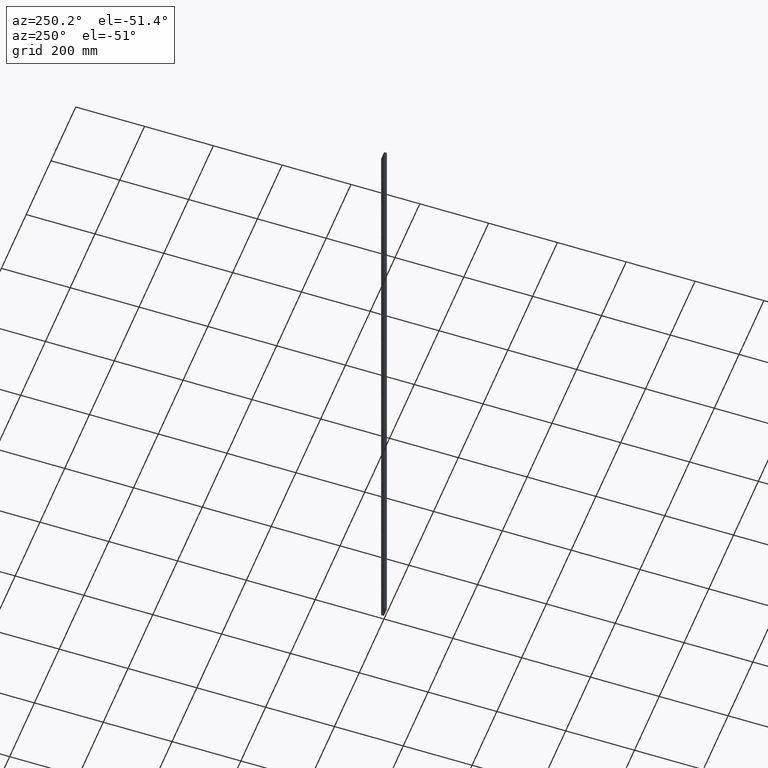
[diagram: clean part render]
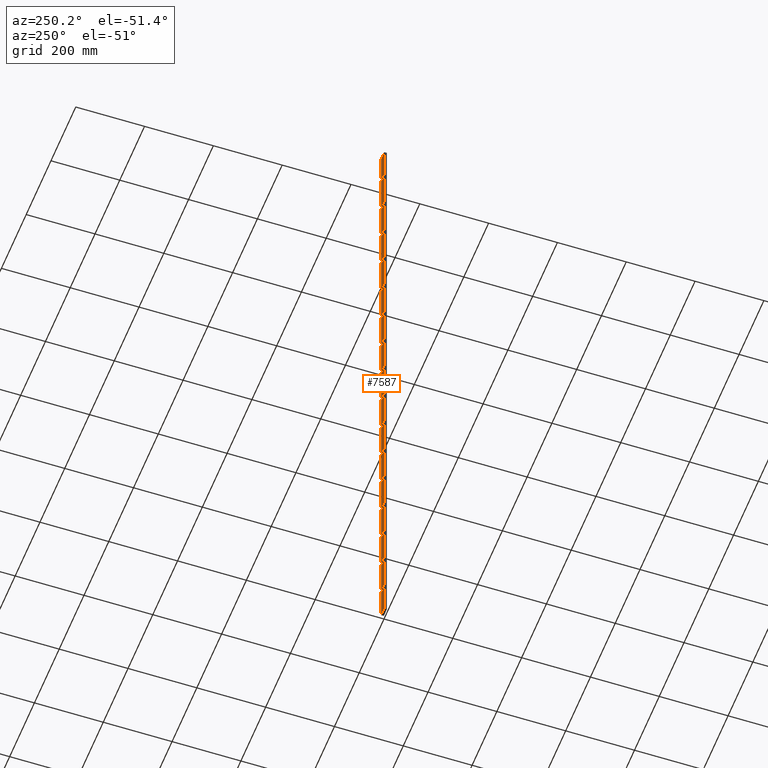
[diagram: same view with one face highlighted and labeled with its STEP entity id]
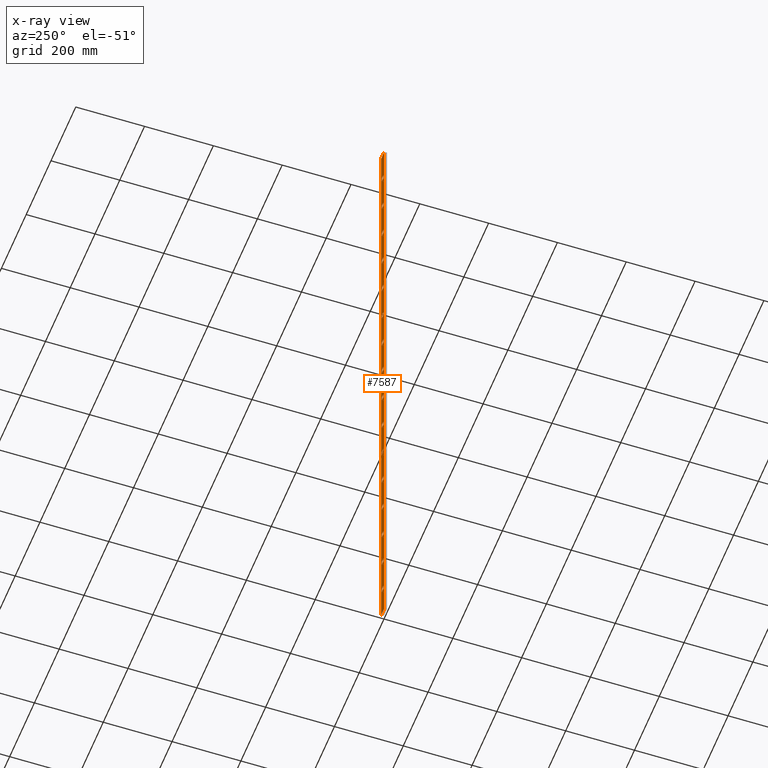
[diagram: x-ray of the same camera — body ghosted, the highlighted face saturated]
A machine part, auxiliary view. The second image highlights one B-rep face of the part: STEP entity #7587.
The next image is the same camera in x-ray: the body ghosted, the highlighted face saturated — about 0% of this face is hidden behind the body in this view.
In plain terms, the highlighted planar face has unit normal (0, 1, 0).
Its self-contained STEP definition (entity closure, byte-faithful):
#15 = VECTOR ( 'NONE', #5927, 1000.000000000000000 ) ;
#29 = ORIENTED_EDGE ( 'NONE', *, *, #4945, .F. ) ;
#46 = VERTEX_POINT ( 'NONE', #12232 ) ;
#56 = DIRECTION ( 'NONE',  ( 1.000000000000000000, 0.000000000000000000, 0.000000000000000000 ) ) ;
#63 = VECTOR ( 'NONE', #10597, 1000.000000000000000 ) ;
#116 = LINE ( 'NONE', #2184, #11740 ) ;
#154 = VECTOR ( 'NONE', #13723, 1000.000000000000000 ) ;
#200 = VERTEX_POINT ( 'NONE', #9331 ) ;
#227 = VECTOR ( 'NONE', #10731, 1000.000000000000000 ) ;
#240 = EDGE_LOOP ( 'NONE', ( #8394, #1902, #10071, #4547 ) ) ;
#258 = ORIENTED_EDGE ( 'NONE', *, *, #11860, .F. ) ;
#321 = CARTESIAN_POINT ( 'NONE',  ( 6.500000000000103029, 4.000000000000000000, -66.50000000000000000 ) ) ;
#325 = LINE ( 'NONE', #7321, #8709 ) ;
#327 = EDGE_CURVE ( 'NONE', #10203, #662, #7542, .T. ) ;
#329 = LINE ( 'NONE', #360, #9256 ) ;
#345 = CARTESIAN_POINT ( 'NONE',  ( -6.499999999999926281, 4.000000000000000000, -306.5000000000000000 ) ) ;
#349 = CARTESIAN_POINT ( 'NONE',  ( -6.499999999999836575, 4.000000000000000000, 426.4999999999998863 ) ) ;
#360 = CARTESIAN_POINT ( 'NONE',  ( -6.499999999999823252, 4.000000000000000000, 533.5000000000000000 ) ) ;
#467 = CARTESIAN_POINT ( 'NONE',  ( -6.499999999999880096, 4.000000000000000000, 66.50000000000000000 ) ) ;
#478 = EDGE_CURVE ( 'NONE', #1856, #7910, #14488, .T. ) ;
#530 = CARTESIAN_POINT ( 'NONE',  ( -6.499999999999881872, 4.000000000000000000, 53.49999999999999289 ) ) ;
#542 = VERTEX_POINT ( 'NONE', #9730 ) ;
#546 = CARTESIAN_POINT ( 'NONE',  ( -6.499999999999984901, 4.000000000000000000, -786.5000000000000000 ) ) ;
#648 = VERTEX_POINT ( 'NONE', #5390 ) ;
#656 = CARTESIAN_POINT ( 'NONE',  ( -6.499999999999821476, 4.000000000000000000, 546.5000000000000000 ) ) ;
#662 = VERTEX_POINT ( 'NONE', #10011 ) ;
#684 = CARTESIAN_POINT ( 'NONE',  ( 6.500000000000175859, 4.000000000000000000, 546.5000000000000000 ) ) ;
#690 = CARTESIAN_POINT ( 'NONE',  ( 6.500000000000014211, 4.000000000000000000, -786.5000000000000000 ) ) ;
#694 = CARTESIAN_POINT ( 'NONE',  ( 6.500000000000190958, 4.000000000000000000, 666.5000000000001137 ) ) ;
#711 = LINE ( 'NONE', #12636, #14100 ) ;
#719 = VERTEX_POINT ( 'NONE', #2321 ) ;
#835 = EDGE_CURVE ( 'NONE', #8054, #200, #12360, .T. ) ;
#854 = VERTEX_POINT ( 'NONE', #1188 ) ;
#865 = EDGE_LOOP ( 'NONE', ( #3510, #6103, #29, #8428 ) ) ;
#918 = VERTEX_POINT ( 'NONE', #9549 ) ;
#924 = CARTESIAN_POINT ( 'NONE',  ( -6.499999999999865885, 4.000000000000000000, 186.5000000000001137 ) ) ;
#926 = ORIENTED_EDGE ( 'NONE', *, *, #1789, .F. ) ;
#948 = EDGE_LOOP ( 'NONE', ( #13165, #2267, #4478, #8540 ) ) ;
#967 = FACE_BOUND ( 'NONE', #8071, .T. ) ;
#977 = EDGE_CURVE ( 'NONE', #9874, #1856, #3223, .T. ) ;
#994 = ORIENTED_EDGE ( 'NONE', *, *, #11745, .F. ) ;
#1040 = LINE ( 'NONE', #14633, #2985 ) ;
#1082 = LINE ( 'NONE', #2525, #15 ) ;
#1131 = DIRECTION ( 'NONE',  ( 1.334402673828312107E-16, 0.000000000000000000, 1.000000000000000000 ) ) ;
#1139 = DIRECTION ( 'NONE',  ( -0.000000000000000000, -0.000000000000000000, -1.000000000000000000 ) ) ;
#1162 = CARTESIAN_POINT ( 'NONE',  ( 6.500000000000000000, 4.000000000000000000, -893.5000000000000000 ) ) ;
#1188 = CARTESIAN_POINT ( 'NONE',  ( -6.499999999999998224, 4.000000000000000000, -893.5000000000000000 ) ) ;
#1237 = VECTOR ( 'NONE', #3477, 1000.000000000000000 ) ;
#1248 = VERTEX_POINT ( 'NONE', #4018 ) ;
#1261 = EDGE_LOOP ( 'NONE', ( #3863, #5552, #3787, #6462 ) ) ;
#1308 = CARTESIAN_POINT ( 'NONE',  ( -6.499999999999809042, 4.000000000000000000, 653.5000000000001137 ) ) ;
#1365 = EDGE_CURVE ( 'NONE', #13858, #14280, #12701, .T. ) ;
#1385 = VERTEX_POINT ( 'NONE', #7189 ) ;
#1394 = CARTESIAN_POINT ( 'NONE',  ( -6.500000000000000000, 4.000000000000000000, -906.5000000000000000 ) ) ;
#1418 = CARTESIAN_POINT ( 'NONE',  ( 6.500000000000014211, 4.000000000000000000, -773.5000000000000000 ) ) ;
#1588 = DIRECTION ( 'NONE',  ( 1.334402673828312107E-16, 0.000000000000000000, 1.000000000000000000 ) ) ;
#1589 = LINE ( 'NONE', #546, #3332 ) ;
#1594 = CARTESIAN_POINT ( 'NONE',  ( 6.500000000000146549, 4.000000000000000000, 306.5000000000000000 ) ) ;
#1682 = LINE ( 'NONE', #9907, #12755 ) ;
#1736 = CARTESIAN_POINT ( 'NONE',  ( -6.499999999999881872, 4.000000000000000000, 53.49999999999999289 ) ) ;
#1753 = EDGE_CURVE ( 'NONE', #12922, #9095, #3023, .T. ) ;
#1781 = VECTOR ( 'NONE', #6419, 1000.000000000000000 ) ;
#1783 = CARTESIAN_POINT ( 'NONE',  ( -6.499999999999779732, 4.000000000000000000, 893.4999999999998863 ) ) ;
#1789 = EDGE_CURVE ( 'NONE', #6401, #1868, #6266, .T. ) ;
#1798 = DIRECTION ( 'NONE',  ( 0.000000000000000000, 1.000000000000000000, 0.000000000000000000 ) ) ;
#1801 = CARTESIAN_POINT ( 'NONE',  ( -6.499999999999793943, 4.000000000000000000, 773.5000000000000000 ) ) ;
#1804 = VERTEX_POINT ( 'NONE', #13809 ) ;
#1856 = VERTEX_POINT ( 'NONE', #6958 ) ;
#1868 = VERTEX_POINT ( 'NONE', #12944 ) ;
#1900 = LINE ( 'NONE', #4274, #3294 ) ;
#1902 = ORIENTED_EDGE ( 'NONE', *, *, #9916, .F. ) ;
#1915 = EDGE_LOOP ( 'NONE', ( #7048, #6932, #926, #14189 ) ) ;
#1953 = VERTEX_POINT ( 'NONE', #14343 ) ;
#1967 = VECTOR ( 'NONE', #8599, 1000.000000000000000 ) ;
#1980 = VECTOR ( 'NONE', #2706, 1000.000000000000000 ) ;
#2005 = DIRECTION ( 'NONE',  ( 1.334402673828312107E-16, 0.000000000000000000, 1.000000000000000000 ) ) ;
#2046 = FACE_BOUND ( 'NONE', #11369, .T. ) ;
#2052 = FACE_BOUND ( 'NONE', #3891, .T. ) ;
#2062 = EDGE_CURVE ( 'NONE', #648, #8197, #4817, .T. ) ;
#2097 = VECTOR ( 'NONE', #1131, 1000.000000000000000 ) ;
#2101 = VECTOR ( 'NONE', #2905, 1000.000000000000000 ) ;
#2113 = VECTOR ( 'NONE', #3024, 1000.000000000000000 ) ;
#2130 = CARTESIAN_POINT ( 'NONE',  ( 6.500000000000220268, 4.000000000000000000, 893.4999999999998863 ) ) ;
#2145 = EDGE_CURVE ( 'NONE', #7577, #13359, #4448, .T. ) ;
#2184 = CARTESIAN_POINT ( 'NONE',  ( -6.499999999999984901, 4.000000000000000000, -786.5000000000000000 ) ) ;
#2239 = CARTESIAN_POINT ( 'NONE',  ( -6.499999999999940492, 4.000000000000000000, -426.5000000000000000 ) ) ;
#2260 = LINE ( 'NONE', #14070, #2101 ) ;
#2267 = ORIENTED_EDGE ( 'NONE', *, *, #6339, .F. ) ;
#2300 = VECTOR ( 'NONE', #6670, 1000.000000000000000 ) ;
#2321 = CARTESIAN_POINT ( 'NONE',  ( -12.50000000000000000, 4.000000000000000000, -1000.000000000000000 ) ) ;
#2331 = EDGE_CURVE ( 'NONE', #10834, #8054, #10728, .T. ) ;
#2473 = VERTEX_POINT ( 'NONE', #14362 ) ;
#2475 = DIRECTION ( 'NONE',  ( 1.334402673828312107E-16, 0.000000000000000000, 1.000000000000000000 ) ) ;
#2499 = CARTESIAN_POINT ( 'NONE',  ( 12.50000000000000000, 4.000000000000000000, 1000.000000000000000 ) ) ;
#2525 = CARTESIAN_POINT ( 'NONE',  ( -6.499999999999807265, 4.000000000000000000, 666.5000000000001137 ) ) ;
#2577 = ORIENTED_EDGE ( 'NONE', *, *, #4995, .F. ) ;
#2578 = DIRECTION ( 'NONE',  ( 1.000000000000000000, 0.000000000000000000, 0.000000000000000000 ) ) ;
#2608 = VECTOR ( 'NONE', #8097, 1000.000000000000000 ) ;
#2649 = ORIENTED_EDGE ( 'NONE', *, *, #14720, .T. ) ;
#2706 = DIRECTION ( 'NONE',  ( -1.000000000000000000, -0.000000000000000000, -0.000000000000000000 ) ) ;
#2713 = CARTESIAN_POINT ( 'NONE',  ( -6.499999999999779732, 4.000000000000000000, 893.4999999999998863 ) ) ;
#2886 = VERTEX_POINT ( 'NONE', #13513 ) ;
#2898 = ORIENTED_EDGE ( 'NONE', *, *, #10018, .F. ) ;
#2905 = DIRECTION ( 'NONE',  ( -1.000000000000000000, -0.000000000000000000, -0.000000000000000000 ) ) ;
#2931 = EDGE_CURVE ( 'NONE', #8747, #8968, #3003, .T. ) ;
#2933 = VERTEX_POINT ( 'NONE', #10443 ) ;
#2935 = VERTEX_POINT ( 'NONE', #13794 ) ;
#2985 = VECTOR ( 'NONE', #3279, 1000.000000000000000 ) ;
#3003 = LINE ( 'NONE', #11650, #1237 ) ;
#3023 = LINE ( 'NONE', #7081, #7161 ) ;
#3024 = DIRECTION ( 'NONE',  ( -1.000000000000000000, -0.000000000000000000, -0.000000000000000000 ) ) ;
#3053 = ORIENTED_EDGE ( 'NONE', *, *, #2331, .F. ) ;
#3054 = VECTOR ( 'NONE', #3455, 1000.000000000000000 ) ;
#3093 = EDGE_CURVE ( 'NONE', #8957, #10354, #8922, .T. ) ;
#3128 = ORIENTED_EDGE ( 'NONE', *, *, #12591, .F. ) ;
#3184 = EDGE_CURVE ( 'NONE', #12063, #7754, #4781, .T. ) ;
#3223 = LINE ( 'NONE', #467, #227 ) ;
#3233 = VERTEX_POINT ( 'NONE', #10197 ) ;
#3270 = ORIENTED_EDGE ( 'NONE', *, *, #478, .F. ) ;
#3279 = DIRECTION ( 'NONE',  ( -0.000000000000000000, -0.000000000000000000, -1.000000000000000000 ) ) ;
#3294 = VECTOR ( 'NONE', #10033, 1000.000000000000000 ) ;
#3295 = VERTEX_POINT ( 'NONE', #8783 ) ;
#3331 = CARTESIAN_POINT ( 'NONE',  ( -6.499999999999953815, 4.000000000000000000, -533.5000000000000000 ) ) ;
#3332 = VECTOR ( 'NONE', #9688, 1000.000000000000000 ) ;
#3345 = VERTEX_POINT ( 'NONE', #14548 ) ;
#3350 = LINE ( 'NONE', #13034, #12314 ) ;
#3355 = EDGE_CURVE ( 'NONE', #12559, #648, #3912, .T. ) ;
#3357 = CARTESIAN_POINT ( 'NONE',  ( 6.500000000000205169, 4.000000000000000000, 786.5000000000000000 ) ) ;
#3371 = VECTOR ( 'NONE', #4345, 1000.000000000000000 ) ;
#3442 = EDGE_CURVE ( 'NONE', #10554, #8710, #9267, .T. ) ;
#3455 = DIRECTION ( 'NONE',  ( -0.000000000000000000, -0.000000000000000000, 1.000000000000000000 ) ) ;
#3477 = DIRECTION ( 'NONE',  ( -1.000000000000000000, -0.000000000000000000, -0.000000000000000000 ) ) ;
#3510 = ORIENTED_EDGE ( 'NONE', *, *, #2062, .F. ) ;
#3635 = FACE_BOUND ( 'NONE', #240, .T. ) ;
#3681 = LINE ( 'NONE', #14263, #9421 ) ;
#3724 = DIRECTION ( 'NONE',  ( 1.334402673828312107E-16, 0.000000000000000000, 1.000000000000000000 ) ) ;
#3726 = ORIENTED_EDGE ( 'NONE', *, *, #10627, .F. ) ;
#3728 = EDGE_CURVE ( 'NONE', #4338, #9874, #3900, .T. ) ;
#3732 = LINE ( 'NONE', #11672, #13744 ) ;
#3780 = ORIENTED_EDGE ( 'NONE', *, *, #11587, .F. ) ;
#3787 = ORIENTED_EDGE ( 'NONE', *, *, #3883, .F. ) ;
#3808 = CARTESIAN_POINT ( 'NONE',  ( -6.499999999999969802, 4.000000000000000000, -666.5000000000000000 ) ) ;
#3829 = FACE_BOUND ( 'NONE', #11674, .T. ) ;
#3831 = CARTESIAN_POINT ( 'NONE',  ( -6.499999999999851674, 4.000000000000000000, 306.5000000000000000 ) ) ;
#3847 = LINE ( 'NONE', #321, #14407 ) ;
#3863 = ORIENTED_EDGE ( 'NONE', *, *, #14758, .F. ) ;
#3873 = DIRECTION ( 'NONE',  ( -0.000000000000000000, -0.000000000000000000, -1.000000000000000000 ) ) ;
#3883 = EDGE_CURVE ( 'NONE', #854, #13858, #711, .T. ) ;
#3888 = VECTOR ( 'NONE', #10816, 1000.000000000000000 ) ;
#3891 = EDGE_LOOP ( 'NONE', ( #3726, #14306, #11449, #3780 ) ) ;
#3894 = VERTEX_POINT ( 'NONE', #5659 ) ;
#3900 = LINE ( 'NONE', #8906, #12299 ) ;
#3912 = LINE ( 'NONE', #11498, #9659 ) ;
#3922 = LINE ( 'NONE', #6981, #8583 ) ;
#3946 = VECTOR ( 'NONE', #7524, 1000.000000000000000 ) ;
#3967 = LINE ( 'NONE', #10236, #9884 ) ;
#3987 = DIRECTION ( 'NONE',  ( -0.000000000000000000, -0.000000000000000000, -1.000000000000000000 ) ) ;
#4007 = FACE_BOUND ( 'NONE', #865, .T. ) ;
#4018 = CARTESIAN_POINT ( 'NONE',  ( -6.499999999999940492, 4.000000000000000000, -426.5000000000000000 ) ) ;
#4068 = CARTESIAN_POINT ( 'NONE',  ( 6.500000000000117240, 4.000000000000000000, 53.49999999999999289 ) ) ;
#4076 = LINE ( 'NONE', #12410, #9810 ) ;
#4080 = CARTESIAN_POINT ( 'NONE',  ( -6.499999999999896083, 4.000000000000000000, -66.50000000000000000 ) ) ;
#4104 = VERTEX_POINT ( 'NONE', #11090 ) ;
#4146 = EDGE_LOOP ( 'NONE', ( #5321, #11337, #8578, #9337 ) ) ;
#4172 = ORIENTED_EDGE ( 'NONE', *, *, #6487, .F. ) ;
#4251 = VECTOR ( 'NONE', #9474, 1000.000000000000000 ) ;
#4268 = EDGE_CURVE ( 'NONE', #12907, #2933, #2260, .T. ) ;
#4274 = CARTESIAN_POINT ( 'NONE',  ( -6.499999999999838352, 4.000000000000000000, 413.4999999999998863 ) ) ;
#4297 = EDGE_CURVE ( 'NONE', #13407, #10203, #12124, .T. ) ;
#4328 = VERTEX_POINT ( 'NONE', #10764 ) ;
#4338 = VERTEX_POINT ( 'NONE', #1736 ) ;
#4345 = DIRECTION ( 'NONE',  ( -0.000000000000000000, -0.000000000000000000, -1.000000000000000000 ) ) ;
#4448 = LINE ( 'NONE', #5622, #3371 ) ;
#4451 = EDGE_CURVE ( 'NONE', #9413, #8136, #4076, .T. ) ;
#4478 = ORIENTED_EDGE ( 'NONE', *, *, #7147, .F. ) ;
#4481 = VECTOR ( 'NONE', #8497, 1000.000000000000000 ) ;
#4544 = CARTESIAN_POINT ( 'NONE',  ( -6.499999999999983125, 4.000000000000000000, -773.5000000000000000 ) ) ;
#4547 = ORIENTED_EDGE ( 'NONE', *, *, #8302, .F. ) ;
#4552 = EDGE_CURVE ( 'NONE', #7259, #10834, #329, .T. ) ;
#4652 = CARTESIAN_POINT ( 'NONE',  ( 12.50000000000000000, 4.000000000000000000, 1000.000000000000000 ) ) ;
#4665 = CARTESIAN_POINT ( 'NONE',  ( -6.499999999999924505, 4.000000000000000000, -293.5000000000000000 ) ) ;
#4705 = ORIENTED_EDGE ( 'NONE', *, *, #8633, .T. ) ;
#4712 = FACE_BOUND ( 'NONE', #1261, .T. ) ;
#4781 = LINE ( 'NONE', #5200, #14290 ) ;
#4802 = CARTESIAN_POINT ( 'NONE',  ( -6.499999999999823252, 4.000000000000000000, 533.5000000000000000 ) ) ;
#4817 = LINE ( 'NONE', #2130, #6790 ) ;
#4888 = FACE_BOUND ( 'NONE', #12691, .T. ) ;
#4927 = CARTESIAN_POINT ( 'NONE',  ( -6.499999999999909406, 4.000000000000000000, -173.5000000000000000 ) ) ;
#4945 = EDGE_CURVE ( 'NONE', #8092, #12559, #8550, .T. ) ;
#4995 = EDGE_CURVE ( 'NONE', #5062, #8957, #6915, .T. ) ;
#5030 = DIRECTION ( 'NONE',  ( -0.000000000000000000, -0.000000000000000000, -1.000000000000000000 ) ) ;
#5048 = CARTESIAN_POINT ( 'NONE',  ( -6.499999999999823252, 4.000000000000000000, 533.5000000000000000 ) ) ;
#5062 = VERTEX_POINT ( 'NONE', #13984 ) ;
#5074 = ORIENTED_EDGE ( 'NONE', *, *, #12482, .T. ) ;
#5133 = LINE ( 'NONE', #8116, #2097 ) ;
#5200 = CARTESIAN_POINT ( 'NONE',  ( 6.500000000000146549, 4.000000000000000000, 293.5000000000000000 ) ) ;
#5250 = DIRECTION ( 'NONE',  ( -0.000000000000000000, -0.000000000000000000, -1.000000000000000000 ) ) ;
#5260 = CARTESIAN_POINT ( 'NONE',  ( 6.500000000000029310, 4.000000000000000000, -666.5000000000000000 ) ) ;
#5285 = CARTESIAN_POINT ( 'NONE',  ( -6.499999999999911182, 4.000000000000000000, -186.5000000000000000 ) ) ;
#5303 = ORIENTED_EDGE ( 'NONE', *, *, #13530, .F. ) ;
#5321 = ORIENTED_EDGE ( 'NONE', *, *, #2145, .F. ) ;
#5390 = CARTESIAN_POINT ( 'NONE',  ( 6.500000000000220268, 4.000000000000000000, 906.4999999999998863 ) ) ;
#5535 = VERTEX_POINT ( 'NONE', #6141 ) ;
#5552 = ORIENTED_EDGE ( 'NONE', *, *, #1365, .F. ) ;
#5576 = LINE ( 'NONE', #12758, #11321 ) ;
#5578 = DIRECTION ( 'NONE',  ( 1.334402673828312107E-16, 0.000000000000000000, 1.000000000000000000 ) ) ;
#5584 = CARTESIAN_POINT ( 'NONE',  ( 6.500000000000073719, 4.000000000000000000, -306.5000000000000000 ) ) ;
#5617 = ORIENTED_EDGE ( 'NONE', *, *, #4552, .F. ) ;
#5622 = CARTESIAN_POINT ( 'NONE',  ( 6.500000000000043521, 4.000000000000000000, -546.5000000000000000 ) ) ;
#5624 = VECTOR ( 'NONE', #9318, 1000.000000000000000 ) ;
#5659 = CARTESIAN_POINT ( 'NONE',  ( -6.499999999999955591, 4.000000000000000000, -546.5000000000000000 ) ) ;
#5701 = CARTESIAN_POINT ( 'NONE',  ( -12.50000000000000000, 4.000000000000000000, 1000.000000000000000 ) ) ;
#5758 = LINE ( 'NONE', #530, #7930 ) ;
#5767 = EDGE_CURVE ( 'NONE', #8197, #8092, #6553, .T. ) ;
#5844 = VECTOR ( 'NONE', #12521, 1000.000000000000000 ) ;
#5885 = CARTESIAN_POINT ( 'NONE',  ( -6.499999999999955591, 4.000000000000000000, -546.5000000000000000 ) ) ;
#5927 = DIRECTION ( 'NONE',  ( 1.000000000000000000, 0.000000000000000000, 0.000000000000000000 ) ) ;
#6035 = CARTESIAN_POINT ( 'NONE',  ( 6.500000000000087930, 4.000000000000000000, -186.5000000000000000 ) ) ;
#6102 = VECTOR ( 'NONE', #7128, 1000.000000000000000 ) ;
#6103 = ORIENTED_EDGE ( 'NONE', *, *, #3355, .F. ) ;
#6141 = CARTESIAN_POINT ( 'NONE',  ( -6.499999999999896083, 4.000000000000000000, -66.50000000000000000 ) ) ;
#6149 = VERTEX_POINT ( 'NONE', #6299 ) ;
#6152 = FACE_BOUND ( 'NONE', #948, .T. ) ;
#6224 = EDGE_CURVE ( 'NONE', #3894, #12438, #3681, .T. ) ;
#6262 = CARTESIAN_POINT ( 'NONE',  ( 6.500000000000117240, 4.000000000000000000, 53.49999999999999289 ) ) ;
#6266 = LINE ( 'NONE', #11259, #2300 ) ;
#6299 = CARTESIAN_POINT ( 'NONE',  ( 6.500000000000131450, 4.000000000000000000, 173.5000000000000853 ) ) ;
#6318 = EDGE_CURVE ( 'NONE', #13355, #3233, #116, .T. ) ;
#6320 = CARTESIAN_POINT ( 'NONE',  ( 6.500000000000103029, 4.000000000000000000, -66.50000000000000000 ) ) ;
#6335 = CARTESIAN_POINT ( 'NONE',  ( 6.500000000000131450, 4.000000000000000000, 173.5000000000000853 ) ) ;
#6339 = EDGE_CURVE ( 'NONE', #3295, #13407, #12095, .T. ) ;
#6401 = VERTEX_POINT ( 'NONE', #1308 ) ;
#6419 = DIRECTION ( 'NONE',  ( -0.000000000000000000, -0.000000000000000000, -1.000000000000000000 ) ) ;
#6462 = ORIENTED_EDGE ( 'NONE', *, *, #10312, .F. ) ;
#6487 = EDGE_CURVE ( 'NONE', #6149, #4328, #9935, .T. ) ;
#6521 = ORIENTED_EDGE ( 'NONE', *, *, #9641, .F. ) ;
#6548 = LINE ( 'NONE', #2499, #2608 ) ;
#6553 = LINE ( 'NONE', #1783, #13001 ) ;
#6670 = DIRECTION ( 'NONE',  ( 1.334402673828312107E-16, 0.000000000000000000, 1.000000000000000000 ) ) ;
#6786 = VECTOR ( 'NONE', #12739, 1000.000000000000000 ) ;
#6790 = VECTOR ( 'NONE', #13812, 1000.000000000000000 ) ;
#6828 = DIRECTION ( 'NONE',  ( 1.000000000000000000, 0.000000000000000000, 0.000000000000000000 ) ) ;
#6878 = LINE ( 'NONE', #4927, #9591 ) ;
#6915 = LINE ( 'NONE', #5584, #12641 ) ;
#6932 = ORIENTED_EDGE ( 'NONE', *, *, #13465, .F. ) ;
#6949 = CARTESIAN_POINT ( 'NONE',  ( -6.499999999999777955, 4.000000000000000000, 906.4999999999998863 ) ) ;
#6958 = CARTESIAN_POINT ( 'NONE',  ( 6.500000000000117240, 4.000000000000000000, 66.50000000000000000 ) ) ;
#6981 = CARTESIAN_POINT ( 'NONE',  ( 6.500000000000160760, 4.000000000000000000, 413.4999999999998863 ) ) ;
#7042 = DIRECTION ( 'NONE',  ( -1.000000000000000000, -0.000000000000000000, -0.000000000000000000 ) ) ;
#7048 = ORIENTED_EDGE ( 'NONE', *, *, #10080, .F. ) ;
#7052 = DIRECTION ( 'NONE',  ( -1.000000000000000000, -0.000000000000000000, -0.000000000000000000 ) ) ;
#7055 = LINE ( 'NONE', #10856, #13146 ) ;
#7081 = CARTESIAN_POINT ( 'NONE',  ( -6.499999999999793943, 4.000000000000000000, 773.5000000000000000 ) ) ;
#7083 = CARTESIAN_POINT ( 'NONE',  ( -6.499999999999880096, 4.000000000000000000, 66.50000000000000000 ) ) ;
#7114 = ORIENTED_EDGE ( 'NONE', *, *, #9812, .F. ) ;
#7128 = DIRECTION ( 'NONE',  ( -1.000000000000000000, -0.000000000000000000, -0.000000000000000000 ) ) ;
#7147 = EDGE_CURVE ( 'NONE', #662, #3295, #7055, .T. ) ;
#7154 = ORIENTED_EDGE ( 'NONE', *, *, #11171, .F. ) ;
#7161 = VECTOR ( 'NONE', #2475, 1000.000000000000000 ) ;
#7189 = CARTESIAN_POINT ( 'NONE',  ( 12.50000000000000000, 4.000000000000000000, 1000.000000000000000 ) ) ;
#7221 = VERTEX_POINT ( 'NONE', #3357 ) ;
#7259 = VERTEX_POINT ( 'NONE', #4802 ) ;
#7321 = CARTESIAN_POINT ( 'NONE',  ( -6.499999999999924505, 4.000000000000000000, -293.5000000000000000 ) ) ;
#7344 = VECTOR ( 'NONE', #5030, 1000.000000000000000 ) ;
#7406 = CARTESIAN_POINT ( 'NONE',  ( 6.500000000000087930, 4.000000000000000000, -186.5000000000000000 ) ) ;
#7408 = VECTOR ( 'NONE', #9862, 1000.000000000000000 ) ;
#7429 = LINE ( 'NONE', #6335, #7758 ) ;
#7453 = VECTOR ( 'NONE', #10886, 1000.000000000000000 ) ;
#7524 = DIRECTION ( 'NONE',  ( -0.000000000000000000, -0.000000000000000000, -1.000000000000000000 ) ) ;
#7542 = LINE ( 'NONE', #3808, #1980 ) ;
#7559 = EDGE_CURVE ( 'NONE', #8710, #6149, #7429, .T. ) ;
#7574 = ORIENTED_EDGE ( 'NONE', *, *, #7559, .F. ) ;
#7577 = VERTEX_POINT ( 'NONE', #11041 ) ;
#7587 = ADVANCED_FACE ( 'NONE', ( #8491, #2052, #4712, #4888, #6152, #14203, #967, #2046, #8108, #11885, #3829, #3635, #12767, #13837, #10801, #9921, #4007 ), #9845, .T. ) ;
#7647 = CARTESIAN_POINT ( 'NONE',  ( -6.499999999999853451, 4.000000000000000000, 293.5000000000000000 ) ) ;
#7665 = VECTOR ( 'NONE', #9803, 1000.000000000000000 ) ;
#7726 = LINE ( 'NONE', #9402, #4481 ) ;
#7749 = LINE ( 'NONE', #5048, #7408 ) ;
#7754 = VERTEX_POINT ( 'NONE', #11565 ) ;
#7758 = VECTOR ( 'NONE', #8737, 1000.000000000000000 ) ;
#7796 = LINE ( 'NONE', #11104, #13344 ) ;
#7806 = CARTESIAN_POINT ( 'NONE',  ( 6.500000000000160760, 4.000000000000000000, 426.4999999999998863 ) ) ;
#7819 = LINE ( 'NONE', #7937, #14763 ) ;
#7828 = CARTESIAN_POINT ( 'NONE',  ( -6.499999999999911182, 4.000000000000000000, -186.5000000000000000 ) ) ;
#7855 = DIRECTION ( 'NONE',  ( 1.000000000000000000, 0.000000000000000000, 0.000000000000000000 ) ) ;
#7910 = VERTEX_POINT ( 'NONE', #4068 ) ;
#7930 = VECTOR ( 'NONE', #8616, 1000.000000000000000 ) ;
#7937 = CARTESIAN_POINT ( 'NONE',  ( -6.499999999999940492, 4.000000000000000000, -426.5000000000000000 ) ) ;
#7983 = VECTOR ( 'NONE', #7855, 1000.000000000000000 ) ;
#8025 = VECTOR ( 'NONE', #2578, 1000.000000000000000 ) ;
#8054 = VERTEX_POINT ( 'NONE', #684 ) ;
#8071 = EDGE_LOOP ( 'NONE', ( #2577, #3128, #9765, #11112 ) ) ;
#8076 = CARTESIAN_POINT ( 'NONE',  ( 6.500000000000000000, 4.000000000000000000, -906.5000000000000000 ) ) ;
#8086 = ORIENTED_EDGE ( 'NONE', *, *, #3728, .F. ) ;
#8092 = VERTEX_POINT ( 'NONE', #12451 ) ;
#8097 = DIRECTION ( 'NONE',  ( 1.000000000000000000, -0.000000000000000000, -0.000000000000000000 ) ) ;
#8099 = CARTESIAN_POINT ( 'NONE',  ( 6.500000000000205169, 4.000000000000000000, 773.5000000000000000 ) ) ;
#8108 = FACE_BOUND ( 'NONE', #8450, .T. ) ;
#8116 = CARTESIAN_POINT ( 'NONE',  ( -6.499999999999867661, 4.000000000000000000, 173.5000000000000853 ) ) ;
#8136 = VERTEX_POINT ( 'NONE', #7806 ) ;
#8146 = EDGE_CURVE ( 'NONE', #1248, #9791, #12225, .T. ) ;
#8155 = CARTESIAN_POINT ( 'NONE',  ( -6.499999999999865885, 4.000000000000000000, 186.5000000000001137 ) ) ;
#8184 = LINE ( 'NONE', #4652, #154 ) ;
#8197 = VERTEX_POINT ( 'NONE', #10448 ) ;
#8209 = CARTESIAN_POINT ( 'NONE',  ( -6.499999999999792166, 4.000000000000000000, 786.5000000000000000 ) ) ;
#8244 = VECTOR ( 'NONE', #10258, 1000.000000000000000 ) ;
#8249 = EDGE_CURVE ( 'NONE', #1804, #6401, #5576, .T. ) ;
#8302 = EDGE_CURVE ( 'NONE', #7754, #10530, #12403, .T. ) ;
#8339 = DIRECTION ( 'NONE',  ( -1.000000000000000000, -0.000000000000000000, -0.000000000000000000 ) ) ;
#8354 = DIRECTION ( 'NONE',  ( -0.000000000000000000, -0.000000000000000000, -1.000000000000000000 ) ) ;
#8394 = ORIENTED_EDGE ( 'NONE', *, *, #3184, .F. ) ;
#8411 = VERTEX_POINT ( 'NONE', #1418 ) ;
#8428 = ORIENTED_EDGE ( 'NONE', *, *, #5767, .F. ) ;
#8450 = EDGE_LOOP ( 'NONE', ( #12761, #12396, #12764, #8613 ) ) ;
#8452 = EDGE_CURVE ( 'NONE', #7910, #4338, #5758, .T. ) ;
#8491 = FACE_OUTER_BOUND ( 'NONE', #10734, .T. ) ;
#8497 = DIRECTION ( 'NONE',  ( 1.000000000000000000, 0.000000000000000000, 0.000000000000000000 ) ) ;
#8540 = ORIENTED_EDGE ( 'NONE', *, *, #327, .F. ) ;
#8546 = EDGE_CURVE ( 'NONE', #200, #7259, #7749, .T. ) ;
#8550 = LINE ( 'NONE', #2713, #3888 ) ;
#8578 = ORIENTED_EDGE ( 'NONE', *, *, #6224, .F. ) ;
#8583 = VECTOR ( 'NONE', #1139, 1000.000000000000000 ) ;
#8599 = DIRECTION ( 'NONE',  ( 1.000000000000000000, 0.000000000000000000, 0.000000000000000000 ) ) ;
#8613 = ORIENTED_EDGE ( 'NONE', *, *, #11904, .F. ) ;
#8616 = DIRECTION ( 'NONE',  ( -1.000000000000000000, -0.000000000000000000, -0.000000000000000000 ) ) ;
#8633 = EDGE_CURVE ( 'NONE', #2473, #719, #1682, .T. ) ;
#8684 = VECTOR ( 'NONE', #11132, 1000.000000000000000 ) ;
#8709 = VECTOR ( 'NONE', #11907, 1000.000000000000000 ) ;
#8710 = VERTEX_POINT ( 'NONE', #11848 ) ;
#8737 = DIRECTION ( 'NONE',  ( -0.000000000000000000, -0.000000000000000000, -1.000000000000000000 ) ) ;
#8747 = VERTEX_POINT ( 'NONE', #7406 ) ;
#8763 = DIRECTION ( 'NONE',  ( 1.334402673828312107E-16, 0.000000000000000000, 1.000000000000000000 ) ) ;
#8783 = CARTESIAN_POINT ( 'NONE',  ( -6.499999999999968914, 4.000000000000000000, -653.5000000000000000 ) ) ;
#8833 = VECTOR ( 'NONE', #5578, 1000.000000000000000 ) ;
#8906 = CARTESIAN_POINT ( 'NONE',  ( -6.499999999999881872, 4.000000000000000000, 53.49999999999999289 ) ) ;
#8912 = ORIENTED_EDGE ( 'NONE', *, *, #2931, .F. ) ;
#8922 = LINE ( 'NONE', #10949, #2113 ) ;
#8957 = VERTEX_POINT ( 'NONE', #14358 ) ;
#8968 = VERTEX_POINT ( 'NONE', #5285 ) ;
#9021 = CARTESIAN_POINT ( 'NONE',  ( 6.500000000000014211, 4.000000000000000000, -786.5000000000000000 ) ) ;
#9095 = VERTEX_POINT ( 'NONE', #13939 ) ;
#9148 = LINE ( 'NONE', #5701, #3054 ) ;
#9208 = VERTEX_POINT ( 'NONE', #11179 ) ;
#9235 = LINE ( 'NONE', #8209, #5624 ) ;
#9256 = VECTOR ( 'NONE', #3724, 1000.000000000000000 ) ;
#9267 = LINE ( 'NONE', #8155, #4251 ) ;
#9298 = VECTOR ( 'NONE', #12081, 1000.000000000000000 ) ;
#9318 = DIRECTION ( 'NONE',  ( 1.000000000000000000, 0.000000000000000000, 0.000000000000000000 ) ) ;
#9331 = CARTESIAN_POINT ( 'NONE',  ( 6.500000000000175859, 4.000000000000000000, 533.5000000000000000 ) ) ;
#9337 = ORIENTED_EDGE ( 'NONE', *, *, #13048, .F. ) ;
#9375 = VERTEX_POINT ( 'NONE', #4544 ) ;
#9402 = CARTESIAN_POINT ( 'NONE',  ( -6.499999999999938716, 4.000000000000000000, -413.5000000000000000 ) ) ;
#9413 = VERTEX_POINT ( 'NONE', #349 ) ;
#9415 = LINE ( 'NONE', #7647, #7453 ) ;
#9421 = VECTOR ( 'NONE', #8763, 1000.000000000000000 ) ;
#9474 = DIRECTION ( 'NONE',  ( 1.000000000000000000, 0.000000000000000000, 0.000000000000000000 ) ) ;
#9483 = EDGE_LOOP ( 'NONE', ( #9902, #3053, #5617, #13442 ) ) ;
#9505 = VECTOR ( 'NONE', #12929, 1000.000000000000000 ) ;
#9549 = CARTESIAN_POINT ( 'NONE',  ( -6.500000000000000000, 4.000000000000000000, -906.5000000000000000 ) ) ;
#9587 = CARTESIAN_POINT ( 'NONE',  ( 6.500000000000000000, 4.000000000000000000, -906.5000000000000000 ) ) ;
#9591 = VECTOR ( 'NONE', #14090, 1000.000000000000000 ) ;
#9628 = VERTEX_POINT ( 'NONE', #14322 ) ;
#9641 = EDGE_CURVE ( 'NONE', #8411, #13355, #11799, .T. ) ;
#9659 = VECTOR ( 'NONE', #12556, 1000.000000000000000 ) ;
#9688 = DIRECTION ( 'NONE',  ( 1.334402673828312107E-16, 0.000000000000000000, 1.000000000000000000 ) ) ;
#9730 = CARTESIAN_POINT ( 'NONE',  ( 6.500000000000103029, 4.000000000000000000, -53.49999999999999289 ) ) ;
#9734 = CARTESIAN_POINT ( 'NONE',  ( 6.500000000000029310, 4.000000000000000000, -666.5000000000000000 ) ) ;
#9756 = DIRECTION ( 'NONE',  ( 0.000000000000000000, -0.000000000000000000, 1.000000000000000000 ) ) ;
#9765 = ORIENTED_EDGE ( 'NONE', *, *, #12798, .F. ) ;
#9791 = VERTEX_POINT ( 'NONE', #12576 ) ;
#9800 = CARTESIAN_POINT ( 'NONE',  ( 0.000000000000000000, 4.000000000000000000, 0.000000000000000000 ) ) ;
#9803 = DIRECTION ( 'NONE',  ( -1.000000000000000000, -0.000000000000000000, -0.000000000000000000 ) ) ;
#9808 = AXIS2_PLACEMENT_3D ( 'NONE', #9800, #1798, #9756 ) ;
#9810 = VECTOR ( 'NONE', #13432, 1000.000000000000000 ) ;
#9812 = EDGE_CURVE ( 'NONE', #8136, #12907, #3922, .T. ) ;
#9845 = PLANE ( 'NONE',  #9808 ) ;
#9862 = DIRECTION ( 'NONE',  ( -1.000000000000000000, -0.000000000000000000, -0.000000000000000000 ) ) ;
#9863 = LINE ( 'NONE', #8099, #8244 ) ;
#9874 = VERTEX_POINT ( 'NONE', #7083 ) ;
#9884 = VECTOR ( 'NONE', #6828, 1000.000000000000000 ) ;
#9902 = ORIENTED_EDGE ( 'NONE', *, *, #835, .F. ) ;
#9907 = CARTESIAN_POINT ( 'NONE',  ( 12.50000000000000000, 4.000000000000000000, -1000.000000000000000 ) ) ;
#9916 = EDGE_CURVE ( 'NONE', #4104, #12063, #11239, .T. ) ;
#9921 = FACE_BOUND ( 'NONE', #11744, .T. ) ;
#9935 = LINE ( 'NONE', #10117, #8684 ) ;
#10011 = CARTESIAN_POINT ( 'NONE',  ( -6.499999999999969802, 4.000000000000000000, -666.5000000000000000 ) ) ;
#10018 = EDGE_CURVE ( 'NONE', #9628, #8747, #10349, .T. ) ;
#10033 = DIRECTION ( 'NONE',  ( 1.334402673828312107E-16, 0.000000000000000000, 1.000000000000000000 ) ) ;
#10042 = EDGE_CURVE ( 'NONE', #5535, #3345, #12328, .T. ) ;
#10071 = ORIENTED_EDGE ( 'NONE', *, *, #13269, .F. ) ;
#10080 = EDGE_CURVE ( 'NONE', #13726, #1804, #3350, .T. ) ;
#10117 = CARTESIAN_POINT ( 'NONE',  ( -6.499999999999867661, 4.000000000000000000, 173.5000000000000853 ) ) ;
#10168 = CARTESIAN_POINT ( 'NONE',  ( 6.500000000000043521, 4.000000000000000000, -546.5000000000000000 ) ) ;
#10197 = CARTESIAN_POINT ( 'NONE',  ( -6.499999999999984901, 4.000000000000000000, -786.5000000000000000 ) ) ;
#10203 = VERTEX_POINT ( 'NONE', #5260 ) ;
#10236 = CARTESIAN_POINT ( 'NONE',  ( -6.499999999999953815, 4.000000000000000000, -533.5000000000000000 ) ) ;
#10258 = DIRECTION ( 'NONE',  ( -0.000000000000000000, -0.000000000000000000, -1.000000000000000000 ) ) ;
#10312 = EDGE_CURVE ( 'NONE', #918, #854, #3732, .T. ) ;
#10349 = LINE ( 'NONE', #6035, #7344 ) ;
#10354 = VERTEX_POINT ( 'NONE', #345 ) ;
#10364 = CARTESIAN_POINT ( 'NONE',  ( -6.499999999999896083, 4.000000000000000000, -66.50000000000000000 ) ) ;
#10443 = CARTESIAN_POINT ( 'NONE',  ( -6.499999999999838352, 4.000000000000000000, 413.4999999999998863 ) ) ;
#10448 = CARTESIAN_POINT ( 'NONE',  ( 6.500000000000220268, 4.000000000000000000, 893.4999999999998863 ) ) ;
#10501 = VECTOR ( 'NONE', #13865, 1000.000000000000000 ) ;
#10530 = VERTEX_POINT ( 'NONE', #12261 ) ;
#10540 = ORIENTED_EDGE ( 'NONE', *, *, #8452, .F. ) ;
#10554 = VERTEX_POINT ( 'NONE', #924 ) ;
#10597 = DIRECTION ( 'NONE',  ( -1.000000000000000000, -0.000000000000000000, -0.000000000000000000 ) ) ;
#10627 = EDGE_CURVE ( 'NONE', #9208, #1953, #1040, .T. ) ;
#10639 = ORIENTED_EDGE ( 'NONE', *, *, #3442, .F. ) ;
#10687 = LINE ( 'NONE', #1801, #7665 ) ;
#10728 = LINE ( 'NONE', #656, #1967 ) ;
#10731 = DIRECTION ( 'NONE',  ( 1.000000000000000000, 0.000000000000000000, 0.000000000000000000 ) ) ;
#10734 = EDGE_LOOP ( 'NONE', ( #12408, #4705, #2649, #5074 ) ) ;
#10764 = CARTESIAN_POINT ( 'NONE',  ( -6.499999999999867661, 4.000000000000000000, 173.5000000000000853 ) ) ;
#10792 = ORIENTED_EDGE ( 'NONE', *, *, #14069, .F. ) ;
#10801 = FACE_BOUND ( 'NONE', #1915, .T. ) ;
#10816 = DIRECTION ( 'NONE',  ( 1.334402673828312107E-16, 0.000000000000000000, 1.000000000000000000 ) ) ;
#10834 = VERTEX_POINT ( 'NONE', #12481 ) ;
#10856 = CARTESIAN_POINT ( 'NONE',  ( -6.499999999999969802, 4.000000000000000000, -666.5000000000000000 ) ) ;
#10886 = DIRECTION ( 'NONE',  ( 1.334402673828312107E-16, 0.000000000000000000, 1.000000000000000000 ) ) ;
#10949 = CARTESIAN_POINT ( 'NONE',  ( -6.499999999999926281, 4.000000000000000000, -306.5000000000000000 ) ) ;
#11041 = CARTESIAN_POINT ( 'NONE',  ( 6.500000000000043521, 4.000000000000000000, -533.5000000000000000 ) ) ;
#11054 = VECTOR ( 'NONE', #5250, 1000.000000000000000 ) ;
#11090 = CARTESIAN_POINT ( 'NONE',  ( -6.499999999999851674, 4.000000000000000000, 306.5000000000000000 ) ) ;
#11104 = CARTESIAN_POINT ( 'NONE',  ( -6.499999999999926281, 4.000000000000000000, -306.5000000000000000 ) ) ;
#11112 = ORIENTED_EDGE ( 'NONE', *, *, #3093, .F. ) ;
#11132 = DIRECTION ( 'NONE',  ( -1.000000000000000000, -0.000000000000000000, -0.000000000000000000 ) ) ;
#11171 = EDGE_CURVE ( 'NONE', #3233, #9375, #1589, .T. ) ;
#11174 = CARTESIAN_POINT ( 'NONE',  ( 6.500000000000029310, 4.000000000000000000, -653.5000000000000000 ) ) ;
#11179 = CARTESIAN_POINT ( 'NONE',  ( 6.500000000000058620, 4.000000000000000000, -413.5000000000000000 ) ) ;
#11221 = VERTEX_POINT ( 'NONE', #6320 ) ;
#11239 = LINE ( 'NONE', #3831, #8025 ) ;
#11259 = CARTESIAN_POINT ( 'NONE',  ( -6.499999999999809042, 4.000000000000000000, 653.5000000000001137 ) ) ;
#11287 = DIRECTION ( 'NONE',  ( 1.334402673828312107E-16, 0.000000000000000000, 1.000000000000000000 ) ) ;
#11321 = VECTOR ( 'NONE', #7052, 1000.000000000000000 ) ;
#11337 = ORIENTED_EDGE ( 'NONE', *, *, #14244, .F. ) ;
#11369 = EDGE_LOOP ( 'NONE', ( #2898, #13644, #994, #8912 ) ) ;
#11381 = LINE ( 'NONE', #14639, #7983 ) ;
#11449 = ORIENTED_EDGE ( 'NONE', *, *, #8146, .F. ) ;
#11498 = CARTESIAN_POINT ( 'NONE',  ( -6.499999999999777955, 4.000000000000000000, 906.4999999999998863 ) ) ;
#11565 = CARTESIAN_POINT ( 'NONE',  ( 6.500000000000146549, 4.000000000000000000, 293.5000000000000000 ) ) ;
#11572 = EDGE_LOOP ( 'NONE', ( #7114, #12516, #11903, #14008 ) ) ;
#11587 = EDGE_CURVE ( 'NONE', #1953, #1248, #7819, .T. ) ;
#11635 = CARTESIAN_POINT ( 'NONE',  ( 6.500000000000175859, 4.000000000000000000, 533.5000000000000000 ) ) ;
#11650 = CARTESIAN_POINT ( 'NONE',  ( -6.499999999999911182, 4.000000000000000000, -186.5000000000000000 ) ) ;
#11672 = CARTESIAN_POINT ( 'NONE',  ( -6.500000000000000000, 4.000000000000000000, -906.5000000000000000 ) ) ;
#11674 = EDGE_LOOP ( 'NONE', ( #7574, #10639, #258, #4172 ) ) ;
#11740 = VECTOR ( 'NONE', #13692, 1000.000000000000000 ) ;
#11744 = EDGE_LOOP ( 'NONE', ( #12989, #11987, #12577, #10792 ) ) ;
#11745 = EDGE_CURVE ( 'NONE', #8968, #2935, #11949, .T. ) ;
#11799 = LINE ( 'NONE', #690, #1781 ) ;
#11801 = CARTESIAN_POINT ( 'NONE',  ( -6.499999999999853451, 4.000000000000000000, 293.5000000000000000 ) ) ;
#11842 = EDGE_CURVE ( 'NONE', #1385, #2473, #8184, .T. ) ;
#11848 = CARTESIAN_POINT ( 'NONE',  ( 6.500000000000131450, 4.000000000000000000, 186.5000000000001137 ) ) ;
#11860 = EDGE_CURVE ( 'NONE', #4328, #10554, #5133, .T. ) ;
#11885 = FACE_BOUND ( 'NONE', #11901, .T. ) ;
#11901 = EDGE_LOOP ( 'NONE', ( #3270, #13610, #8086, #10540 ) ) ;
#11903 = ORIENTED_EDGE ( 'NONE', *, *, #13379, .F. ) ;
#11904 = EDGE_CURVE ( 'NONE', #11221, #5535, #13557, .T. ) ;
#11907 = DIRECTION ( 'NONE',  ( 1.000000000000000000, 0.000000000000000000, 0.000000000000000000 ) ) ;
#11949 = LINE ( 'NONE', #7828, #5844 ) ;
#11987 = ORIENTED_EDGE ( 'NONE', *, *, #12501, .F. ) ;
#12012 = DIRECTION ( 'NONE',  ( 1.334402673828312107E-16, 0.000000000000000000, 1.000000000000000000 ) ) ;
#12063 = VERTEX_POINT ( 'NONE', #1594 ) ;
#12081 = DIRECTION ( 'NONE',  ( 1.334402673828312107E-16, 0.000000000000000000, 1.000000000000000000 ) ) ;
#12095 = LINE ( 'NONE', #12537, #14744 ) ;
#12124 = LINE ( 'NONE', #9734, #11054 ) ;
#12161 = DIRECTION ( 'NONE',  ( -0.000000000000000000, -0.000000000000000000, -1.000000000000000000 ) ) ;
#12203 = DIRECTION ( 'NONE',  ( 1.000000000000000000, 0.000000000000000000, 0.000000000000000000 ) ) ;
#12225 = LINE ( 'NONE', #2239, #8833 ) ;
#12232 = CARTESIAN_POINT ( 'NONE',  ( -12.50000000000000000, 4.000000000000000000, 1000.000000000000000 ) ) ;
#12261 = CARTESIAN_POINT ( 'NONE',  ( -6.499999999999853451, 4.000000000000000000, 293.5000000000000000 ) ) ;
#12299 = VECTOR ( 'NONE', #11287, 1000.000000000000000 ) ;
#12314 = VECTOR ( 'NONE', #3987, 1000.000000000000000 ) ;
#12328 = LINE ( 'NONE', #4080, #9298 ) ;
#12360 = LINE ( 'NONE', #11635, #6786 ) ;
#12396 = ORIENTED_EDGE ( 'NONE', *, *, #12417, .F. ) ;
#12403 = LINE ( 'NONE', #11801, #63 ) ;
#12408 = ORIENTED_EDGE ( 'NONE', *, *, #11842, .T. ) ;
#12410 = CARTESIAN_POINT ( 'NONE',  ( -6.499999999999836575, 4.000000000000000000, 426.4999999999998863 ) ) ;
#12417 = EDGE_CURVE ( 'NONE', #3345, #542, #11381, .T. ) ;
#12438 = VERTEX_POINT ( 'NONE', #3331 ) ;
#12439 = CARTESIAN_POINT ( 'NONE',  ( 6.500000000000160760, 4.000000000000000000, 413.4999999999998863 ) ) ;
#12451 = CARTESIAN_POINT ( 'NONE',  ( -6.499999999999779732, 4.000000000000000000, 893.4999999999998863 ) ) ;
#12481 = CARTESIAN_POINT ( 'NONE',  ( -6.499999999999821476, 4.000000000000000000, 546.5000000000000000 ) ) ;
#12482 = EDGE_CURVE ( 'NONE', #46, #1385, #6548, .T. ) ;
#12486 = CARTESIAN_POINT ( 'NONE',  ( -6.499999999999793943, 4.000000000000000000, 773.5000000000000000 ) ) ;
#12501 = EDGE_CURVE ( 'NONE', #9095, #7221, #9235, .T. ) ;
#12516 = ORIENTED_EDGE ( 'NONE', *, *, #4451, .F. ) ;
#12521 = DIRECTION ( 'NONE',  ( 1.334402673828312107E-16, 0.000000000000000000, 1.000000000000000000 ) ) ;
#12537 = CARTESIAN_POINT ( 'NONE',  ( -6.499999999999968914, 4.000000000000000000, -653.5000000000000000 ) ) ;
#12556 = DIRECTION ( 'NONE',  ( 1.000000000000000000, 0.000000000000000000, 0.000000000000000000 ) ) ;
#12559 = VERTEX_POINT ( 'NONE', #6949 ) ;
#12576 = CARTESIAN_POINT ( 'NONE',  ( -6.499999999999938716, 4.000000000000000000, -413.5000000000000000 ) ) ;
#12577 = ORIENTED_EDGE ( 'NONE', *, *, #1753, .F. ) ;
#12591 = EDGE_CURVE ( 'NONE', #14204, #5062, #325, .T. ) ;
#12636 = CARTESIAN_POINT ( 'NONE',  ( -6.499999999999998224, 4.000000000000000000, -893.5000000000000000 ) ) ;
#12641 = VECTOR ( 'NONE', #8354, 1000.000000000000000 ) ;
#12691 = EDGE_LOOP ( 'NONE', ( #6521, #5303, #7154, #13743 ) ) ;
#12701 = LINE ( 'NONE', #9587, #13621 ) ;
#12739 = DIRECTION ( 'NONE',  ( -0.000000000000000000, -0.000000000000000000, -1.000000000000000000 ) ) ;
#12755 = VECTOR ( 'NONE', #13356, 1000.000000000000000 ) ;
#12758 = CARTESIAN_POINT ( 'NONE',  ( -6.499999999999809042, 4.000000000000000000, 653.5000000000001137 ) ) ;
#12761 = ORIENTED_EDGE ( 'NONE', *, *, #12997, .F. ) ;
#12764 = ORIENTED_EDGE ( 'NONE', *, *, #10042, .F. ) ;
#12767 = FACE_BOUND ( 'NONE', #11572, .T. ) ;
#12798 = EDGE_CURVE ( 'NONE', #10354, #14204, #7796, .T. ) ;
#12804 = LINE ( 'NONE', #5885, #14053 ) ;
#12907 = VERTEX_POINT ( 'NONE', #12439 ) ;
#12922 = VERTEX_POINT ( 'NONE', #12486 ) ;
#12929 = DIRECTION ( 'NONE',  ( 1.000000000000000000, 0.000000000000000000, 0.000000000000000000 ) ) ;
#12944 = CARTESIAN_POINT ( 'NONE',  ( -6.499999999999807265, 4.000000000000000000, 666.5000000000001137 ) ) ;
#12989 = ORIENTED_EDGE ( 'NONE', *, *, #13840, .F. ) ;
#12997 = EDGE_CURVE ( 'NONE', #542, #11221, #3847, .T. ) ;
#13001 = VECTOR ( 'NONE', #7042, 1000.000000000000000 ) ;
#13034 = CARTESIAN_POINT ( 'NONE',  ( 6.500000000000190958, 4.000000000000000000, 653.5000000000001137 ) ) ;
#13048 = EDGE_CURVE ( 'NONE', #13359, #3894, #12804, .T. ) ;
#13146 = VECTOR ( 'NONE', #12012, 1000.000000000000000 ) ;
#13165 = ORIENTED_EDGE ( 'NONE', *, *, #4297, .F. ) ;
#13176 = EDGE_CURVE ( 'NONE', #2935, #9628, #6878, .T. ) ;
#13269 = EDGE_CURVE ( 'NONE', #10530, #4104, #9415, .T. ) ;
#13344 = VECTOR ( 'NONE', #2005, 1000.000000000000000 ) ;
#13355 = VERTEX_POINT ( 'NONE', #9021 ) ;
#13356 = DIRECTION ( 'NONE',  ( -1.000000000000000000, 0.000000000000000000, 0.000000000000000000 ) ) ;
#13359 = VERTEX_POINT ( 'NONE', #10168 ) ;
#13379 = EDGE_CURVE ( 'NONE', #2933, #9413, #1900, .T. ) ;
#13407 = VERTEX_POINT ( 'NONE', #11174 ) ;
#13432 = DIRECTION ( 'NONE',  ( 1.000000000000000000, 0.000000000000000000, 0.000000000000000000 ) ) ;
#13442 = ORIENTED_EDGE ( 'NONE', *, *, #8546, .F. ) ;
#13465 = EDGE_CURVE ( 'NONE', #1868, #13726, #1082, .T. ) ;
#13513 = CARTESIAN_POINT ( 'NONE',  ( 6.500000000000205169, 4.000000000000000000, 773.5000000000000000 ) ) ;
#13530 = EDGE_CURVE ( 'NONE', #9375, #8411, #14484, .T. ) ;
#13557 = LINE ( 'NONE', #10364, #10501 ) ;
#13610 = ORIENTED_EDGE ( 'NONE', *, *, #977, .F. ) ;
#13621 = VECTOR ( 'NONE', #3873, 1000.000000000000000 ) ;
#13644 = ORIENTED_EDGE ( 'NONE', *, *, #13176, .F. ) ;
#13692 = DIRECTION ( 'NONE',  ( -1.000000000000000000, -0.000000000000000000, -0.000000000000000000 ) ) ;
#13723 = DIRECTION ( 'NONE',  ( 0.000000000000000000, 0.000000000000000000, -1.000000000000000000 ) ) ;
#13726 = VERTEX_POINT ( 'NONE', #694 ) ;
#13743 = ORIENTED_EDGE ( 'NONE', *, *, #6318, .F. ) ;
#13744 = VECTOR ( 'NONE', #1588, 1000.000000000000000 ) ;
#13794 = CARTESIAN_POINT ( 'NONE',  ( -6.499999999999909406, 4.000000000000000000, -173.5000000000000000 ) ) ;
#13809 = CARTESIAN_POINT ( 'NONE',  ( 6.500000000000190958, 4.000000000000000000, 653.5000000000001137 ) ) ;
#13812 = DIRECTION ( 'NONE',  ( -0.000000000000000000, -0.000000000000000000, -1.000000000000000000 ) ) ;
#13834 = DIRECTION ( 'NONE',  ( -1.000000000000000000, -0.000000000000000000, -0.000000000000000000 ) ) ;
#13837 = FACE_BOUND ( 'NONE', #9483, .T. ) ;
#13840 = EDGE_CURVE ( 'NONE', #7221, #2886, #9863, .T. ) ;
#13858 = VERTEX_POINT ( 'NONE', #1162 ) ;
#13865 = DIRECTION ( 'NONE',  ( -1.000000000000000000, -0.000000000000000000, -0.000000000000000000 ) ) ;
#13867 = CARTESIAN_POINT ( 'NONE',  ( -6.499999999999983125, 4.000000000000000000, -773.5000000000000000 ) ) ;
#13882 = DIRECTION ( 'NONE',  ( -0.000000000000000000, -0.000000000000000000, -1.000000000000000000 ) ) ;
#13939 = CARTESIAN_POINT ( 'NONE',  ( -6.499999999999792166, 4.000000000000000000, 786.5000000000000000 ) ) ;
#13984 = CARTESIAN_POINT ( 'NONE',  ( 6.500000000000073719, 4.000000000000000000, -293.5000000000000000 ) ) ;
#14008 = ORIENTED_EDGE ( 'NONE', *, *, #4268, .F. ) ;
#14053 = VECTOR ( 'NONE', #8339, 1000.000000000000000 ) ;
#14069 = EDGE_CURVE ( 'NONE', #2886, #12922, #10687, .T. ) ;
#14070 = CARTESIAN_POINT ( 'NONE',  ( -6.499999999999838352, 4.000000000000000000, 413.4999999999998863 ) ) ;
#14090 = DIRECTION ( 'NONE',  ( 1.000000000000000000, 0.000000000000000000, 0.000000000000000000 ) ) ;
#14100 = VECTOR ( 'NONE', #56, 1000.000000000000000 ) ;
#14189 = ORIENTED_EDGE ( 'NONE', *, *, #8249, .F. ) ;
#14203 = FACE_BOUND ( 'NONE', #4146, .T. ) ;
#14204 = VERTEX_POINT ( 'NONE', #4665 ) ;
#14244 = EDGE_CURVE ( 'NONE', #12438, #7577, #3967, .T. ) ;
#14263 = CARTESIAN_POINT ( 'NONE',  ( -6.499999999999955591, 4.000000000000000000, -546.5000000000000000 ) ) ;
#14280 = VERTEX_POINT ( 'NONE', #8076 ) ;
#14290 = VECTOR ( 'NONE', #12161, 1000.000000000000000 ) ;
#14306 = ORIENTED_EDGE ( 'NONE', *, *, #14431, .F. ) ;
#14322 = CARTESIAN_POINT ( 'NONE',  ( 6.500000000000087930, 4.000000000000000000, -173.5000000000000000 ) ) ;
#14343 = CARTESIAN_POINT ( 'NONE',  ( 6.500000000000058620, 4.000000000000000000, -426.5000000000000000 ) ) ;
#14358 = CARTESIAN_POINT ( 'NONE',  ( 6.500000000000073719, 4.000000000000000000, -306.5000000000000000 ) ) ;
#14362 = CARTESIAN_POINT ( 'NONE',  ( 12.50000000000000000, 4.000000000000000000, -1000.000000000000000 ) ) ;
#14407 = VECTOR ( 'NONE', #13882, 1000.000000000000000 ) ;
#14431 = EDGE_CURVE ( 'NONE', #9791, #9208, #7726, .T. ) ;
#14484 = LINE ( 'NONE', #13867, #9505 ) ;
#14488 = LINE ( 'NONE', #6262, #3946 ) ;
#14494 = LINE ( 'NONE', #1394, #6102 ) ;
#14548 = CARTESIAN_POINT ( 'NONE',  ( -6.499999999999895195, 4.000000000000000000, -53.49999999999999289 ) ) ;
#14633 = CARTESIAN_POINT ( 'NONE',  ( 6.500000000000058620, 4.000000000000000000, -426.5000000000000000 ) ) ;
#14639 = CARTESIAN_POINT ( 'NONE',  ( -6.499999999999895195, 4.000000000000000000, -53.49999999999999289 ) ) ;
#14720 = EDGE_CURVE ( 'NONE', #719, #46, #9148, .T. ) ;
#14744 = VECTOR ( 'NONE', #12203, 1000.000000000000000 ) ;
#14758 = EDGE_CURVE ( 'NONE', #14280, #918, #14494, .T. ) ;
#14763 = VECTOR ( 'NONE', #13834, 1000.000000000000000 ) ;